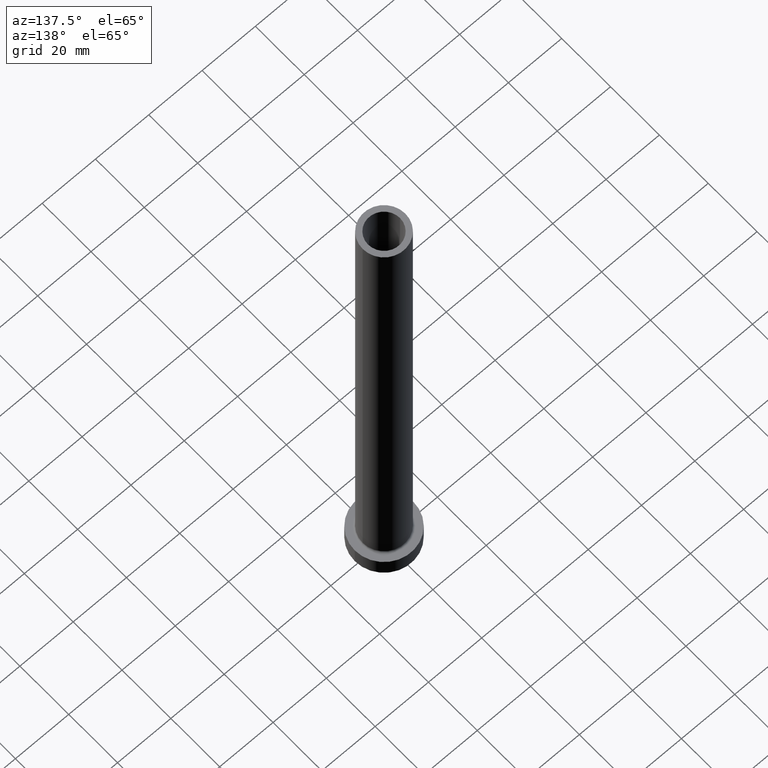
[diagram: clean part render]
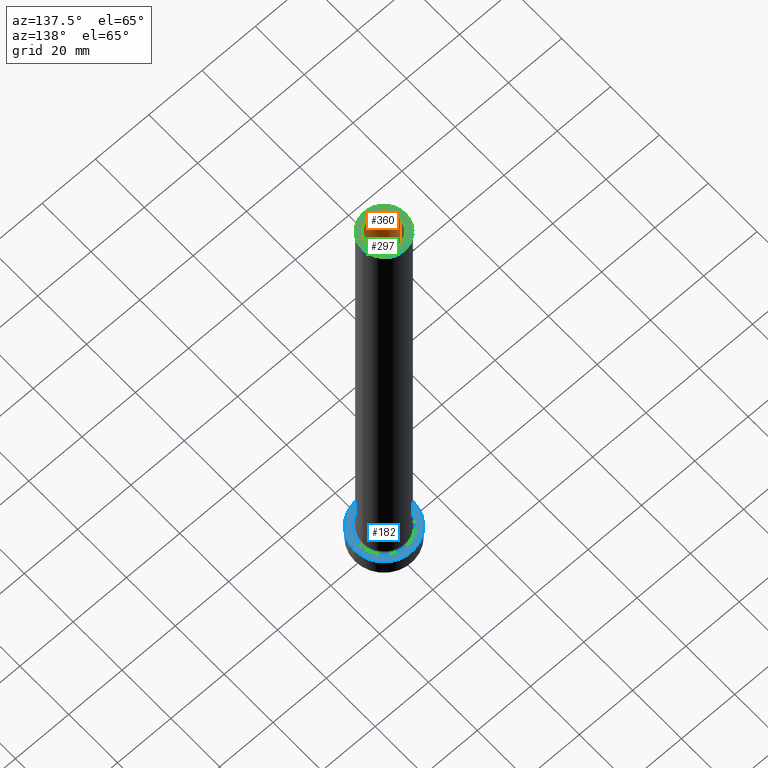
[diagram: same view with three faces highlighted in distinct colors, each labeled with its STEP entity id]
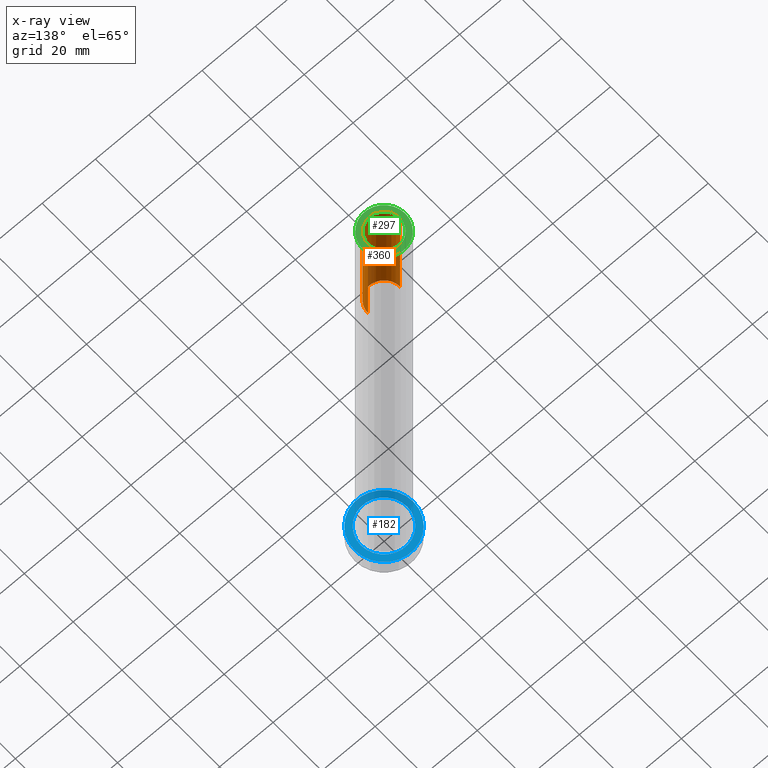
[diagram: x-ray of the same camera — body ghosted, the three highlighted faces saturated]
A machine part, auxiliary view with three faces highlighted in distinct colors.
The next image is the same camera in x-ray (body ghosted, the three faces saturated) — at least one of them is partly hidden behind the body in this view.
Their STEP definitions:

[orange] entity #360 — the highlighted cylindrical surface (edge-blend (fillet) strip) has radius 6 mm, axis along (0, 0, -1).
#19 = DIRECTION ( 'NONE',  ( 1.000000000000000000, 0.000000000000000000, 0.000000000000000000 ) ) ;
#32 = VECTOR ( 'NONE', #318, 1000.000000000000000 ) ;
#36 = DIRECTION ( 'NONE',  ( -1.000000000000000000, 0.000000000000000000, 0.000000000000000000 ) ) ;
#40 = DIRECTION ( 'NONE',  ( 0.000000000000000000, 0.000000000000000000, -1.000000000000000000 ) ) ;
#59 = LINE ( 'NONE', #197, #32 ) ;
#80 = CARTESIAN_POINT ( 'NONE',  ( 6.000000000000000888, 7.347880794884119736E-16, 155.0000000000000284 ) ) ;
#82 = AXIS2_PLACEMENT_3D ( 'NONE', #255, #179, #36 ) ;
#98 = VECTOR ( 'NONE', #40, 1000.000000000000000 ) ;
#104 = ORIENTED_EDGE ( 'NONE', *, *, #435, .T. ) ;
#111 = DIRECTION ( 'NONE',  ( 1.000000000000000000, 0.000000000000000000, 0.000000000000000000 ) ) ;
#141 = FACE_OUTER_BOUND ( 'NONE', #230, .T. ) ;
#146 = CIRCLE ( 'NONE', #253, 6.000000000000000888 ) ;
#175 = EDGE_CURVE ( 'NONE', #459, #450, #59, .T. ) ;
#179 = DIRECTION ( 'NONE',  ( 0.000000000000000000, 0.000000000000000000, -1.000000000000000000 ) ) ;
#197 = CARTESIAN_POINT ( 'NONE',  ( -6.000000000000000888, 0.000000000000000000, 200.0000000000000000 ) ) ;
#215 = LINE ( 'NONE', #365, #98 ) ;
#221 = AXIS2_PLACEMENT_3D ( 'NONE', #252, #290, #111 ) ;
#226 = CARTESIAN_POINT ( 'NONE',  ( -6.000000000000000888, 0.000000000000000000, 200.0000000000000000 ) ) ;
#230 = EDGE_LOOP ( 'NONE', ( #421, #104, #240, #312 ) ) ;
#240 = ORIENTED_EDGE ( 'NONE', *, *, #329, .F. ) ;
#243 = VERTEX_POINT ( 'NONE', #80 ) ;
#252 = CARTESIAN_POINT ( 'NONE',  ( 0.000000000000000000, 0.000000000000000000, 200.0000000000000000 ) ) ;
#253 = AXIS2_PLACEMENT_3D ( 'NONE', #316, #456, #19 ) ;
#254 = CARTESIAN_POINT ( 'NONE',  ( -6.000000000000000888, 0.000000000000000000, 155.0000000000000284 ) ) ;
#255 = CARTESIAN_POINT ( 'NONE',  ( 0.000000000000000000, 0.000000000000000000, 200.0000000000000000 ) ) ;
#267 = CARTESIAN_POINT ( 'NONE',  ( 6.000000000000000888, 7.347880794884119736E-16, 200.0000000000000000 ) ) ;
#290 = DIRECTION ( 'NONE',  ( 0.000000000000000000, 0.000000000000000000, 1.000000000000000000 ) ) ;
#295 = CYLINDRICAL_SURFACE ( 'NONE', #82, 6.000000000000000888 ) ;
#309 = VERTEX_POINT ( 'NONE', #267 ) ;
#312 = ORIENTED_EDGE ( 'NONE', *, *, #175, .F. ) ;
#316 = CARTESIAN_POINT ( 'NONE',  ( 0.000000000000000000, 0.000000000000000000, 155.0000000000000284 ) ) ;
#318 = DIRECTION ( 'NONE',  ( 0.000000000000000000, 0.000000000000000000, -1.000000000000000000 ) ) ;
#329 = EDGE_CURVE ( 'NONE', #450, #243, #146, .T. ) ;
#348 = EDGE_CURVE ( 'NONE', #459, #309, #364, .T. ) ;
#360 = ADVANCED_FACE ( 'NONE', ( #141 ), #295, .F. ) ;
#364 = CIRCLE ( 'NONE', #221, 6.000000000000000888 ) ;
#365 = CARTESIAN_POINT ( 'NONE',  ( 6.000000000000000888, 7.347880794884119736E-16, 200.0000000000000000 ) ) ;
#421 = ORIENTED_EDGE ( 'NONE', *, *, #348, .T. ) ;
#435 = EDGE_CURVE ( 'NONE', #309, #243, #215, .T. ) ;
#450 = VERTEX_POINT ( 'NONE', #254 ) ;
#456 = DIRECTION ( 'NONE',  ( 0.000000000000000000, 0.000000000000000000, 1.000000000000000000 ) ) ;
#459 = VERTEX_POINT ( 'NONE', #226 ) ;

[blue] entity #182 — the highlighted planar face has unit normal (0, 0, 1).
#10 = CIRCLE ( 'NONE', #322, 8.699999999999999289 ) ;
#18 = CIRCLE ( 'NONE', #34, 8.699999999999999289 ) ;
#24 = DIRECTION ( 'NONE',  ( 1.000000000000000000, 0.000000000000000000, 0.000000000000000000 ) ) ;
#25 = ORIENTED_EDGE ( 'NONE', *, *, #63, .T. ) ;
#26 = FACE_BOUND ( 'NONE', #298, .T. ) ;
#28 = CIRCLE ( 'NONE', #78, 11.00000000000000000 ) ;
#34 = AXIS2_PLACEMENT_3D ( 'NONE', #433, #426, #397 ) ;
#38 = EDGE_CURVE ( 'NONE', #196, #385, #18, .T. ) ;
#63 = EDGE_CURVE ( 'NONE', #282, #190, #438, .T. ) ;
#78 = AXIS2_PLACEMENT_3D ( 'NONE', #306, #229, #24 ) ;
#102 = DIRECTION ( 'NONE',  ( 0.000000000000000000, 0.000000000000000000, 1.000000000000000000 ) ) ;
#131 = ORIENTED_EDGE ( 'NONE', *, *, #256, .T. ) ;
#147 = CARTESIAN_POINT ( 'NONE',  ( -8.699999999999999289, 1.065442715258197248E-15, 7.000000000000006217 ) ) ;
#169 = CARTESIAN_POINT ( 'NONE',  ( 11.00000000000000000, 1.347111479062088405E-15, 7.000000000000000000 ) ) ;
#182 = ADVANCED_FACE ( 'NONE', ( #26, #454 ), #275, .T. ) ;
#183 = CARTESIAN_POINT ( 'NONE',  ( 0.000000000000000000, 0.000000000000000000, 7.000000000000000000 ) ) ;
#184 = DIRECTION ( 'NONE',  ( 0.000000000000000000, 0.000000000000000000, 1.000000000000000000 ) ) ;
#190 = VERTEX_POINT ( 'NONE', #169 ) ;
#196 = VERTEX_POINT ( 'NONE', #147 ) ;
#212 = EDGE_CURVE ( 'NONE', #385, #196, #10, .T. ) ;
#229 = DIRECTION ( 'NONE',  ( 0.000000000000000000, 0.000000000000000000, 1.000000000000000000 ) ) ;
#241 = CARTESIAN_POINT ( 'NONE',  ( 0.000000000000000000, 0.000000000000000000, 7.000000000000000000 ) ) ;
#248 = CARTESIAN_POINT ( 'NONE',  ( 8.699999999999999289, 0.000000000000000000, 7.000000000000006217 ) ) ;
#249 = CARTESIAN_POINT ( 'NONE',  ( 0.000000000000000000, 0.000000000000000000, 7.000000000000000000 ) ) ;
#250 = ORIENTED_EDGE ( 'NONE', *, *, #38, .T. ) ;
#256 = EDGE_CURVE ( 'NONE', #190, #282, #28, .T. ) ;
#275 = PLANE ( 'NONE',  #294 ) ;
#278 = CARTESIAN_POINT ( 'NONE',  ( -11.00000000000000000, 0.000000000000000000, 7.000000000000000000 ) ) ;
#282 = VERTEX_POINT ( 'NONE', #278 ) ;
#294 = AXIS2_PLACEMENT_3D ( 'NONE', #241, #102, #395 ) ;
#296 = AXIS2_PLACEMENT_3D ( 'NONE', #249, #184, #406 ) ;
#298 = EDGE_LOOP ( 'NONE', ( #347, #250 ) ) ;
#306 = CARTESIAN_POINT ( 'NONE',  ( 0.000000000000000000, 0.000000000000000000, 7.000000000000000000 ) ) ;
#322 = AXIS2_PLACEMENT_3D ( 'NONE', #183, #440, #380 ) ;
#347 = ORIENTED_EDGE ( 'NONE', *, *, #212, .T. ) ;
#380 = DIRECTION ( 'NONE',  ( 1.000000000000000000, 0.000000000000000000, 0.000000000000000000 ) ) ;
#385 = VERTEX_POINT ( 'NONE', #248 ) ;
#395 = DIRECTION ( 'NONE',  ( 1.000000000000000000, 0.000000000000000000, -0.000000000000000000 ) ) ;
#397 = DIRECTION ( 'NONE',  ( 1.000000000000000000, 0.000000000000000000, 0.000000000000000000 ) ) ;
#406 = DIRECTION ( 'NONE',  ( 1.000000000000000000, 0.000000000000000000, 0.000000000000000000 ) ) ;
#426 = DIRECTION ( 'NONE',  ( -0.000000000000000000, -0.000000000000000000, -1.000000000000000000 ) ) ;
#433 = CARTESIAN_POINT ( 'NONE',  ( 0.000000000000000000, 0.000000000000000000, 7.000000000000000000 ) ) ;
#438 = CIRCLE ( 'NONE', #296, 11.00000000000000000 ) ;
#440 = DIRECTION ( 'NONE',  ( -0.000000000000000000, -0.000000000000000000, -1.000000000000000000 ) ) ;
#453 = EDGE_LOOP ( 'NONE', ( #25, #131 ) ) ;
#454 = FACE_OUTER_BOUND ( 'NONE', #453, .T. ) ;

[green] entity #297 — the highlighted planar face has unit normal (0, 0, 1).
#14 = EDGE_CURVE ( 'NONE', #309, #459, #436, .T. ) ;
#21 = ORIENTED_EDGE ( 'NONE', *, *, #372, .T. ) ;
#41 = EDGE_CURVE ( 'NONE', #307, #415, #168, .T. ) ;
#46 = CIRCLE ( 'NONE', #180, 8.000000000000000000 ) ;
#83 = CARTESIAN_POINT ( 'NONE',  ( 0.000000000000000000, 0.000000000000000000, 200.0000000000000000 ) ) ;
#99 = DIRECTION ( 'NONE',  ( 1.000000000000000000, 0.000000000000000000, 0.000000000000000000 ) ) ;
#105 = CARTESIAN_POINT ( 'NONE',  ( 0.000000000000000000, 0.000000000000000000, 200.0000000000000000 ) ) ;
#107 = DIRECTION ( 'NONE',  ( 1.000000000000000000, 0.000000000000000000, 0.000000000000000000 ) ) ;
#109 = AXIS2_PLACEMENT_3D ( 'NONE', #83, #122, #270 ) ;
#111 = DIRECTION ( 'NONE',  ( 1.000000000000000000, 0.000000000000000000, 0.000000000000000000 ) ) ;
#122 = DIRECTION ( 'NONE',  ( 0.000000000000000000, 0.000000000000000000, 1.000000000000000000 ) ) ;
#137 = DIRECTION ( 'NONE',  ( 0.000000000000000000, 0.000000000000000000, 1.000000000000000000 ) ) ;
#142 = CARTESIAN_POINT ( 'NONE',  ( -8.000000000000000000, 0.000000000000000000, 200.0000000000000000 ) ) ;
#158 = ORIENTED_EDGE ( 'NONE', *, *, #41, .T. ) ;
#164 = DIRECTION ( 'NONE',  ( 0.000000000000000000, 0.000000000000000000, 1.000000000000000000 ) ) ;
#168 = CIRCLE ( 'NONE', #443, 8.000000000000000000 ) ;
#180 = AXIS2_PLACEMENT_3D ( 'NONE', #105, #289, #107 ) ;
#192 = FACE_OUTER_BOUND ( 'NONE', #265, .T. ) ;
#221 = AXIS2_PLACEMENT_3D ( 'NONE', #252, #290, #111 ) ;
#224 = AXIS2_PLACEMENT_3D ( 'NONE', #281, #137, #389 ) ;
#226 = CARTESIAN_POINT ( 'NONE',  ( -6.000000000000000888, 0.000000000000000000, 200.0000000000000000 ) ) ;
#247 = CARTESIAN_POINT ( 'NONE',  ( 0.000000000000000000, 0.000000000000000000, 200.0000000000000000 ) ) ;
#252 = CARTESIAN_POINT ( 'NONE',  ( 0.000000000000000000, 0.000000000000000000, 200.0000000000000000 ) ) ;
#265 = EDGE_LOOP ( 'NONE', ( #21, #158 ) ) ;
#267 = CARTESIAN_POINT ( 'NONE',  ( 6.000000000000000888, 7.347880794884119736E-16, 200.0000000000000000 ) ) ;
#270 = DIRECTION ( 'NONE',  ( 1.000000000000000000, 0.000000000000000000, -0.000000000000000000 ) ) ;
#273 = PLANE ( 'NONE',  #109 ) ;
#281 = CARTESIAN_POINT ( 'NONE',  ( 0.000000000000000000, 0.000000000000000000, 200.0000000000000000 ) ) ;
#289 = DIRECTION ( 'NONE',  ( 0.000000000000000000, 0.000000000000000000, 1.000000000000000000 ) ) ;
#290 = DIRECTION ( 'NONE',  ( 0.000000000000000000, 0.000000000000000000, 1.000000000000000000 ) ) ;
#297 = ADVANCED_FACE ( 'NONE', ( #374, #192 ), #273, .T. ) ;
#307 = VERTEX_POINT ( 'NONE', #387 ) ;
#309 = VERTEX_POINT ( 'NONE', #267 ) ;
#348 = EDGE_CURVE ( 'NONE', #459, #309, #364, .T. ) ;
#358 = ORIENTED_EDGE ( 'NONE', *, *, #14, .F. ) ;
#364 = CIRCLE ( 'NONE', #221, 6.000000000000000888 ) ;
#372 = EDGE_CURVE ( 'NONE', #415, #307, #46, .T. ) ;
#374 = FACE_BOUND ( 'NONE', #423, .T. ) ;
#387 = CARTESIAN_POINT ( 'NONE',  ( 8.000000000000000000, 9.797174393178825657E-16, 200.0000000000000000 ) ) ;
#389 = DIRECTION ( 'NONE',  ( 1.000000000000000000, 0.000000000000000000, 0.000000000000000000 ) ) ;
#415 = VERTEX_POINT ( 'NONE', #142 ) ;
#423 = EDGE_LOOP ( 'NONE', ( #445, #358 ) ) ;
#436 = CIRCLE ( 'NONE', #224, 6.000000000000000888 ) ;
#443 = AXIS2_PLACEMENT_3D ( 'NONE', #247, #164, #99 ) ;
#445 = ORIENTED_EDGE ( 'NONE', *, *, #348, .F. ) ;
#459 = VERTEX_POINT ( 'NONE', #226 ) ;